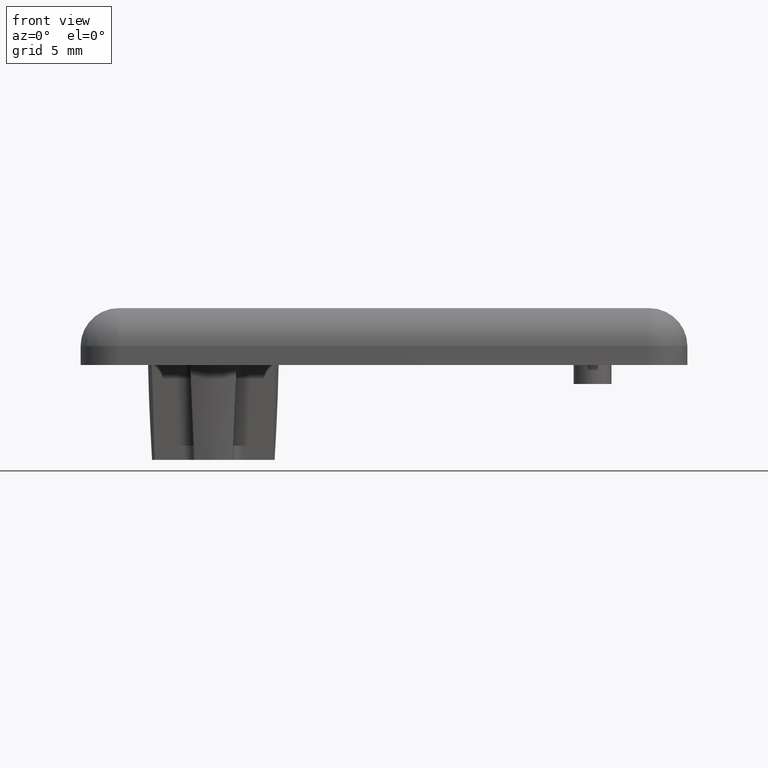
[diagram: clean part render]
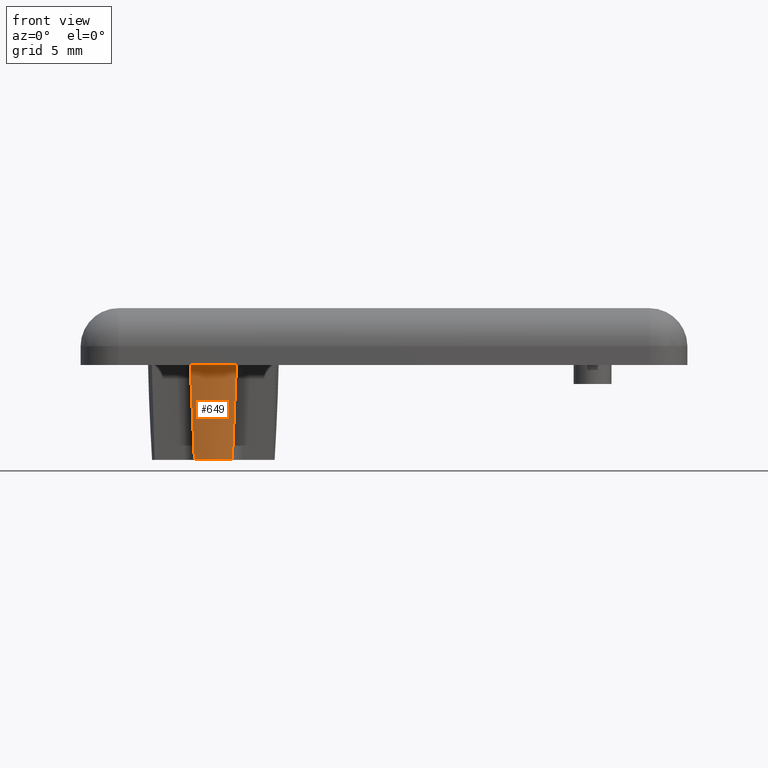
[diagram: same view with one face highlighted and labeled with its STEP entity id]
A machine part, front view. The second image highlights one B-rep face of the part: STEP entity #649.
In plain terms, the highlighted conical surface has half-angle 2.5 deg.
Its self-contained STEP definition (entity closure, byte-faithful):
#25=(
BOUNDED_CURVE()
B_SPLINE_CURVE(2,(#1051,#1052,#1053),.UNSPECIFIED.,.F.,.F.)
B_SPLINE_CURVE_WITH_KNOTS((3,3),(129.365656319432,130.50753777024),
 .UNSPECIFIED.)
CURVE()
GEOMETRIC_REPRESENTATION_ITEM()
RATIONAL_B_SPLINE_CURVE((1.,1.,1.))
REPRESENTATION_ITEM('')
);
#26=(
BOUNDED_CURVE()
B_SPLINE_CURVE(2,(#1059,#1060,#1061),.UNSPECIFIED.,.F.,.F.)
B_SPLINE_CURVE_WITH_KNOTS((3,3),(82.649049565206,83.7909310159598),
 .UNSPECIFIED.)
CURVE()
GEOMETRIC_REPRESENTATION_ITEM()
RATIONAL_B_SPLINE_CURVE((1.,1.,1.))
REPRESENTATION_ITEM('')
);
#33=CONICAL_SURFACE('',#703,3.25,2.5);
#69=FACE_OUTER_BOUND('',#109,.T.);
#109=EDGE_LOOP('',(#489,#490,#491,#492));
#253=CIRCLE('',#704,3.46830471454256);
#254=CIRCLE('',#705,3.25);
#305=VERTEX_POINT('',#1048);
#306=VERTEX_POINT('',#1050);
#307=VERTEX_POINT('',#1056);
#308=VERTEX_POINT('',#1058);
#376=EDGE_CURVE('',#306,#305,#25,.T.);
#378=EDGE_CURVE('',#307,#305,#253,.F.);
#379=EDGE_CURVE('',#308,#307,#26,.F.);
#380=EDGE_CURVE('',#308,#306,#254,.T.);
#489=ORIENTED_EDGE('',*,*,#378,.F.);
#490=ORIENTED_EDGE('',*,*,#379,.F.);
#491=ORIENTED_EDGE('',*,*,#380,.T.);
#492=ORIENTED_EDGE('',*,*,#376,.T.);
#649=ADVANCED_FACE('',(#69),#33,.T.);
#703=AXIS2_PLACEMENT_3D('',#1055,#831,#832);
#704=AXIS2_PLACEMENT_3D('',#1057,#833,#834);
#705=AXIS2_PLACEMENT_3D('',#1062,#835,#836);
#831=DIRECTION('center_axis',(0.,0.,1.));
#832=DIRECTION('ref_axis',(1.,0.,0.));
#833=DIRECTION('center_axis',(0.,0.,-1.));
#834=DIRECTION('ref_axis',(1.,0.,0.));
#835=DIRECTION('center_axis',(0.,0.,1.));
#836=DIRECTION('ref_axis',(1.,0.,0.));
#1048=CARTESIAN_POINT('',(-7.78169528545744,-3.2472867467228,0.));
#1050=CARTESIAN_POINT('',(-8.,-3.09232921921325,-5.));
#1051=CARTESIAN_POINT('Ctrl Pts',(-8.00000000000302,-3.09232921910855,-5.00000000006896));
#1052=CARTESIAN_POINT('Ctrl Pts',(-7.89351562443403,-3.1698079828671,-2.5611068274657));
#1053=CARTESIAN_POINT('Ctrl Pts',(-7.78169528545745,-3.24728674662566,0.));
#1055=CARTESIAN_POINT('Origin',(-9.,0.,-5.));
#1056=CARTESIAN_POINT('',(-10.2183047145426,-3.2472867467228,0.));
#1057=CARTESIAN_POINT('Origin',(-9.,0.,0.));
#1058=CARTESIAN_POINT('',(-10.,-3.09232921921325,-5.));
#1059=CARTESIAN_POINT('Ctrl Pts',(-10.2183047145426,-3.24728674677263,1.06581410364015E-13));
#1060=CARTESIAN_POINT('Ctrl Pts',(-10.1064843755663,-3.16980798301812,-2.56110682746014));
#1061=CARTESIAN_POINT('Ctrl Pts',(-9.99999999999698,-3.0923292192636,-5.00000000007017));
#1062=CARTESIAN_POINT('Origin',(-9.,0.,-5.));